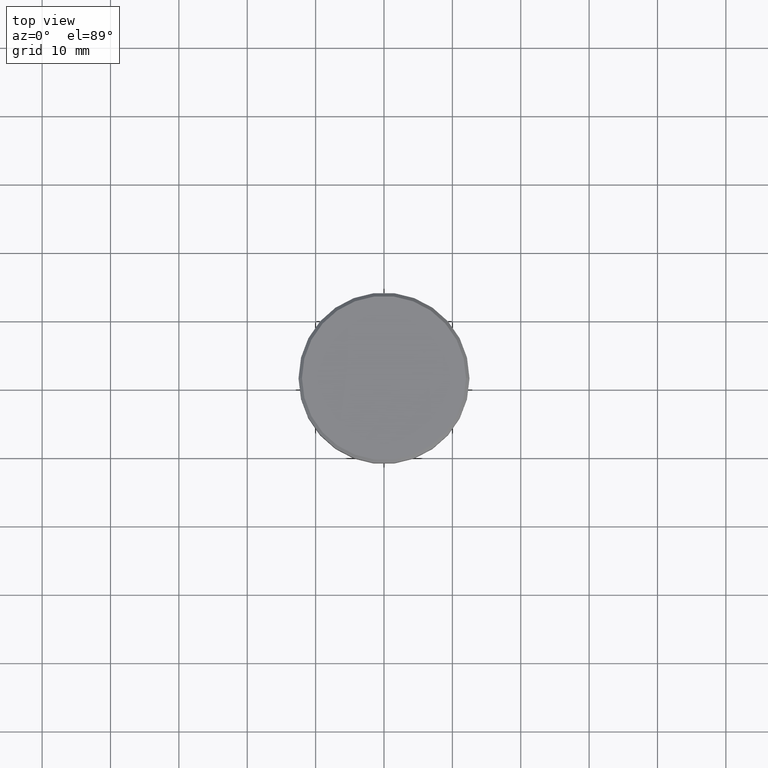
[diagram: clean part render]
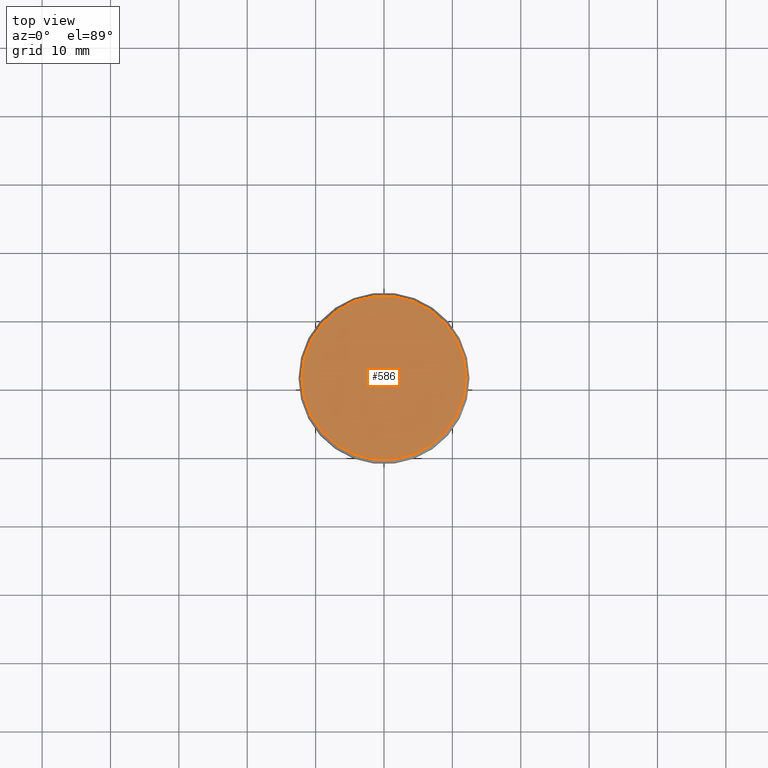
[diagram: same view with one face highlighted and labeled with its STEP entity id]
A machine part, top view. The second image highlights one B-rep face of the part: STEP entity #586.
In plain terms, the highlighted planar face has unit normal (0, -0, 1).
Its self-contained STEP definition (entity closure, byte-faithful):
#50 = DIRECTION ( 'NONE',  ( -0.000000000000000000, -0.000000000000000000, 1.000000000000000000 ) ) ;
#212 = FACE_OUTER_BOUND ( 'NONE', #1158, .T. ) ;
#215 = CIRCLE ( 'NONE', #347, 11.99999999999999645 ) ;
#226 = DIRECTION ( 'NONE',  ( 1.000000000000000000, 0.000000000000000000, 0.000000000000000000 ) ) ;
#276 = VERTEX_POINT ( 'NONE', #887 ) ;
#347 = AXIS2_PLACEMENT_3D ( 'NONE', #712, #1159, #226 ) ;
#416 = DIRECTION ( 'NONE',  ( 1.000000000000000000, 0.000000000000000000, 0.000000000000000000 ) ) ;
#436 = AXIS2_PLACEMENT_3D ( 'NONE', #513, #727, #978 ) ;
#453 = VERTEX_POINT ( 'NONE', #611 ) ;
#474 = PLANE ( 'NONE',  #436 ) ;
#513 = CARTESIAN_POINT ( 'NONE',  ( 0.000000000000000000, 0.000000000000000000, 0.000000000000000000 ) ) ;
#586 = ADVANCED_FACE ( 'NONE', ( #212 ), #474, .T. ) ;
#611 = CARTESIAN_POINT ( 'NONE',  ( 11.99999999999999645, 1.500192328955507537E-15, 0.000000000000000000 ) ) ;
#712 = CARTESIAN_POINT ( 'NONE',  ( 0.000000000000000000, 0.000000000000000000, 0.000000000000000000 ) ) ;
#727 = DIRECTION ( 'NONE',  ( 0.000000000000000000, -0.000000000000000000, 1.000000000000000000 ) ) ;
#753 = ORIENTED_EDGE ( 'NONE', *, *, #794, .T. ) ;
#794 = EDGE_CURVE ( 'NONE', #453, #276, #1013, .T. ) ;
#851 = ORIENTED_EDGE ( 'NONE', *, *, #1003, .T. ) ;
#887 = CARTESIAN_POINT ( 'NONE',  ( -11.99999999999999645, 0.000000000000000000, 0.000000000000000000 ) ) ;
#978 = DIRECTION ( 'NONE',  ( 1.000000000000000000, 0.000000000000000000, 0.000000000000000000 ) ) ;
#985 = AXIS2_PLACEMENT_3D ( 'NONE', #1037, #50, #416 ) ;
#1003 = EDGE_CURVE ( 'NONE', #276, #453, #215, .T. ) ;
#1013 = CIRCLE ( 'NONE', #985, 11.99999999999999645 ) ;
#1037 = CARTESIAN_POINT ( 'NONE',  ( 0.000000000000000000, 0.000000000000000000, 0.000000000000000000 ) ) ;
#1158 = EDGE_LOOP ( 'NONE', ( #851, #753 ) ) ;
#1159 = DIRECTION ( 'NONE',  ( -0.000000000000000000, -0.000000000000000000, 1.000000000000000000 ) ) ;